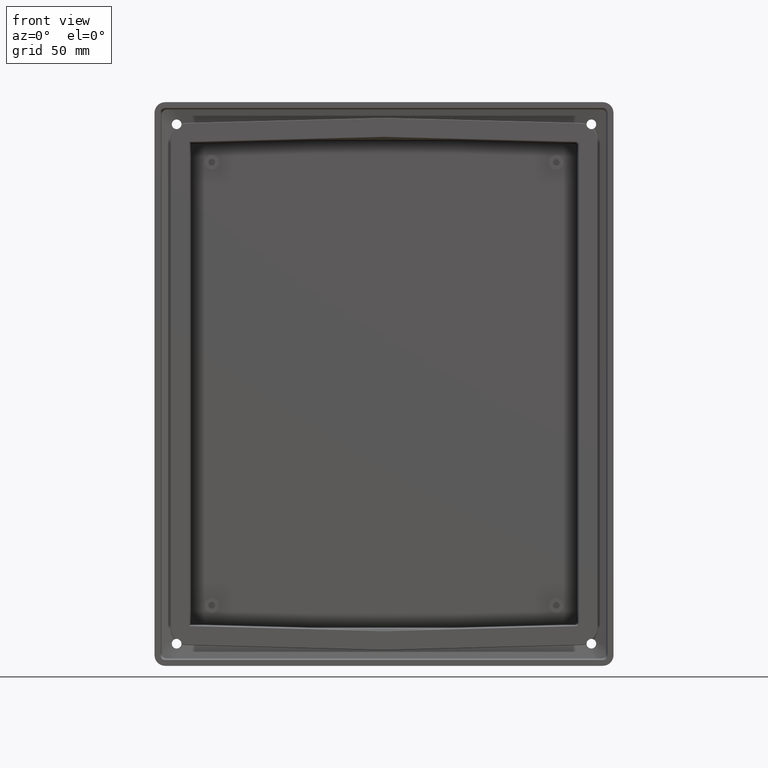
[diagram: clean part render]
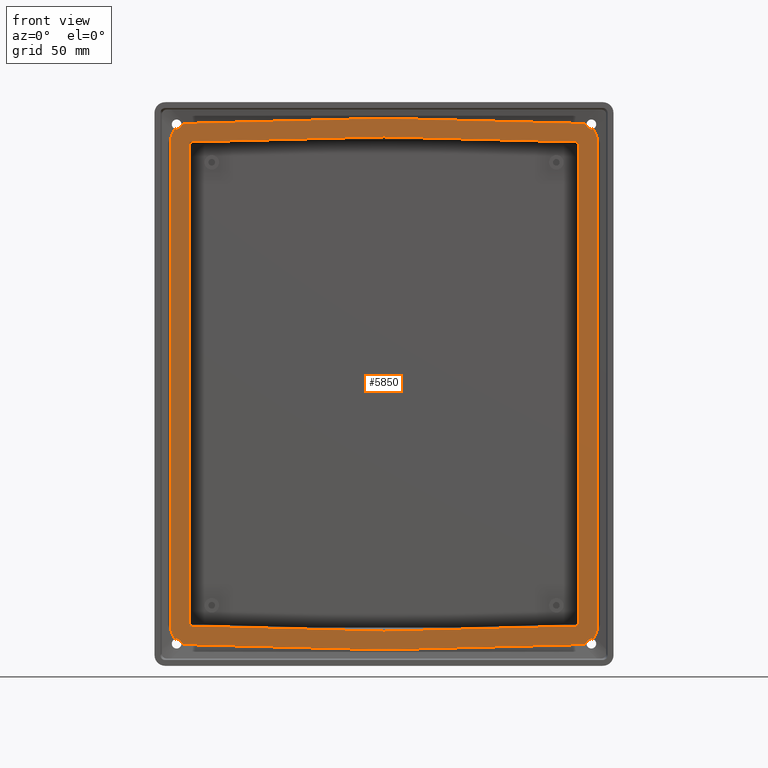
[diagram: same view with one face highlighted and labeled with its STEP entity id]
A machine part, front view. The second image highlights one B-rep face of the part: STEP entity #5850.
In plain terms, the highlighted planar face has unit normal (0, -1, 0).
Its self-contained STEP definition (entity closure, byte-faithful):
#20 = ORIENTED_EDGE ( 'NONE', *, *, #4903, .T. ) ;
#50 = LINE ( 'NONE', #1297, #4356 ) ;
#73 = CARTESIAN_POINT ( 'NONE',  ( -107.7709170404904200, 2.999999999999998700, 131.6218311841499800 ) ) ;
#88 = AXIS2_PLACEMENT_3D ( 'NONE', #2732, #6388, #5802 ) ;
#97 = DIRECTION ( 'NONE',  ( 0.0000000000000000000, 0.0000000000000000000, -1.000000000000000000 ) ) ;
#105 = LINE ( 'NONE', #2924, #5300 ) ;
#157 = ORIENTED_EDGE ( 'NONE', *, *, #1752, .T. ) ;
#169 = CARTESIAN_POINT ( 'NONE',  ( -105.0862626355093400, 2.999999999999995600, -132.4101543157424900 ) ) ;
#191 = DIRECTION ( 'NONE',  ( -1.110223024625155600E-014, 0.0000000000000000000, -1.000000000000000000 ) ) ;
#213 = LINE ( 'NONE', #2365, #6207 ) ;
#261 = CARTESIAN_POINT ( 'NONE',  ( 100.4602804365596700, 3.000000000000000000, 124.2978274590266200 ) ) ;
#276 = ORIENTED_EDGE ( 'NONE', *, *, #6682, .T. ) ;
#304 = ORIENTED_EDGE ( 'NONE', *, *, #403, .T. ) ;
#342 = VECTOR ( 'NONE', #2546, 1000.000000000000000 ) ;
#361 = CIRCLE ( 'NONE', #4826, 2.500000000000002200 ) ;
#372 = CARTESIAN_POINT ( 'NONE',  ( -110.0698050535101400, 3.000000000000000000, -125.6917712295630500 ) ) ;
#374 = VERTEX_POINT ( 'NONE', #5942 ) ;
#384 = DIRECTION ( 'NONE',  ( 0.0000000000000000000, 0.0000000000000000000, -1.000000000000000000 ) ) ;
#394 = EDGE_CURVE ( 'NONE', #3112, #4393, #2237, .T. ) ;
#398 = ORIENTED_EDGE ( 'NONE', *, *, #5612, .T. ) ;
#403 = EDGE_CURVE ( 'NONE', #5514, #5497, #4207, .T. ) ;
#409 = CARTESIAN_POINT ( 'NONE',  ( -101.5053825935026300, 3.000000000000000000, -134.4833968041017400 ) ) ;
#441 = VERTEX_POINT ( 'NONE', #1274 ) ;
#460 = ORIENTED_EDGE ( 'NONE', *, *, #1482, .F. ) ;
#498 = AXIS2_PLACEMENT_3D ( 'NONE', #3967, #2953, #2451 ) ;
#502 = CARTESIAN_POINT ( 'NONE',  ( -101.5053825935026300, 3.000000000000000000, 134.4833968041017400 ) ) ;
#571 = CARTESIAN_POINT ( 'NONE',  ( 105.0862626355093600, 2.999999999999995600, -132.4101543157424000 ) ) ;
#573 = CARTESIAN_POINT ( 'NONE',  ( -103.5449922999814400, 3.000000000000000000, 134.2508689172185300 ) ) ;
#598 = CARTESIAN_POINT ( 'NONE',  ( 110.0698050535101500, 2.999999999999999600, -127.9126488716043000 ) ) ;
#645 = EDGE_CURVE ( 'NONE', #5167, #5744, #3739, .T. ) ;
#681 = CARTESIAN_POINT ( 'NONE',  ( -106.2416402283078900, 2.999999999999995600, 131.6177971419967300 ) ) ;
#723 = CARTESIAN_POINT ( 'NONE',  ( 100.4602804365596600, 3.000000000000000000, 123.4375999160700300 ) ) ;
#765 = AXIS2_PLACEMENT_3D ( 'NONE', #928, #5644, #3083 ) ;
#878 = CIRCLE ( 'NONE', #6132, 2.500000000000002200 ) ;
#885 = ORIENTED_EDGE ( 'NONE', *, *, #2741, .F. ) ;
#892 = VERTEX_POINT ( 'NONE', #2550 ) ;
#901 = ORIENTED_EDGE ( 'NONE', *, *, #5810, .T. ) ;
#928 = CARTESIAN_POINT ( 'NONE',  ( 107.0000000000000000, 2.999999999999999100, -134.0000000000000000 ) ) ;
#950 = DIRECTION ( 'NONE',  ( 5.088522196198723700E-013, 0.0000000000000000000, -1.000000000000000000 ) ) ;
#957 = EDGE_CURVE ( 'NONE', #5205, #4393, #3784, .T. ) ;
#1031 = ORIENTED_EDGE ( 'NONE', *, *, #2206, .T. ) ;
#1039 = DIRECTION ( 'NONE',  ( 0.0000000000000000000, 0.0000000000000000000, -1.000000000000000000 ) ) ;
#1046 = EDGE_CURVE ( 'NONE', #5273, #5574, #6733, .T. ) ;
#1067 = CARTESIAN_POINT ( 'NONE',  ( 2.441132717805358200E-016, 3.000000000000000900, -137.1414087915455300 ) ) ;
#1075 = ORIENTED_EDGE ( 'NONE', *, *, #5293, .F. ) ;
#1092 = FACE_BOUND ( 'NONE', #4018, .T. ) ;
#1104 = CARTESIAN_POINT ( 'NONE',  ( -110.0698050535101400, 3.000000000000000000, 125.6917712295631600 ) ) ;
#1132 = VERTEX_POINT ( 'NONE', #4775 ) ;
#1137 = CARTESIAN_POINT ( 'NONE',  ( 101.5053825935026300, 3.000000000000000000, -134.4833968041017400 ) ) ;
#1157 = CARTESIAN_POINT ( 'NONE',  ( 102.5354722501849700, 2.999999999999999600, -134.4564229571426200 ) ) ;
#1173 = VECTOR ( 'NONE', #1423, 1000.000000000000000 ) ;
#1187 = CARTESIAN_POINT ( 'NONE',  ( 106.1605704700055400, 2.999999999999995600, 131.6579158716704100 ) ) ;
#1193 = DIRECTION ( 'NONE',  ( 0.0000000000000000000, -1.000000000000000000, 0.0000000000000000000 ) ) ;
#1201 = CARTESIAN_POINT ( 'NONE',  ( 104.5032284642048000, 3.000000000000000000, -133.8729885908950900 ) ) ;
#1246 = CIRCLE ( 'NONE', #4416, 0.2999999999999947200 ) ;
#1253 = EDGE_CURVE ( 'NONE', #4424, #374, #1428, .T. ) ;
#1274 = CARTESIAN_POINT ( 'NONE',  ( -106.1605704700056100, 2.999999999999995600, 131.6579158716704100 ) ) ;
#1295 = EDGE_CURVE ( 'NONE', #2892, #3074, #1441, .T. ) ;
#1297 = CARTESIAN_POINT ( 'NONE',  ( 238.1567941947469900, 3.000000000000000000, 39.23316500439019400 ) ) ;
#1360 = EDGE_CURVE ( 'NONE', #3586, #2762, #50, .T. ) ;
#1370 = VECTOR ( 'NONE', #3965, 1000.000000000000100 ) ;
#1379 = DIRECTION ( 'NONE',  ( 0.0000000000000000000, 0.0000000000000000000, -1.000000000000000000 ) ) ;
#1386 = EDGE_CURVE ( 'NONE', #2848, #2009, #878, .T. ) ;
#1394 = CARTESIAN_POINT ( 'NONE',  ( 106.2416402283077900, 2.999999999999995600, 131.6177971419967300 ) ) ;
#1410 = CARTESIAN_POINT ( 'NONE',  ( 101.5053825935026300, 3.000000000000000000, -134.4833968041017400 ) ) ;
#1420 = DIRECTION ( 'NONE',  ( 0.0000000000000000000, -1.000000000000000000, 0.0000000000000000000 ) ) ;
#1421 = FACE_OUTER_BOUND ( 'NONE', #4720, .T. ) ;
#1423 = DIRECTION ( 'NONE',  ( 0.8191520442889800300, 0.0000000000000000000, 0.5735764363510628100 ) ) ;
#1428 =( BOUNDED_CURVE ( )  B_SPLINE_CURVE ( 3, ( #3352, #261, #4385, #5986 ),
 .UNSPECIFIED., .F., .F. ) 
 B_SPLINE_CURVE_WITH_KNOTS ( ( 4, 4 ),
 ( 5.511470371821700600, 7.054900242537437200 ),
 .UNSPECIFIED. ) 
 CURVE ( )  GEOMETRIC_REPRESENTATION_ITEM ( )  RATIONAL_B_SPLINE_CURVE ( ( 1.000000000000000000, 0.8111438583819859900, 0.8111438583819859900, 1.000000000000000000 ) ) 
 REPRESENTATION_ITEM ( '' )  );
#1433 = VECTOR ( 'NONE', #4662, 1000.000000000000000 ) ;
#1441 = CIRCLE ( 'NONE', #6343, 2.500000000000002200 ) ;
#1447 = VERTEX_POINT ( 'NONE', #3031 ) ;
#1460 = CARTESIAN_POINT ( 'NONE',  ( 110.0698050535101500, 3.000000000000000000, -125.0000000000000000 ) ) ;
#1465 = ORIENTED_EDGE ( 'NONE', *, *, #2270, .T. ) ;
#1477 = VECTOR ( 'NONE', #6159, 1000.000000000000000 ) ;
#1482 = EDGE_CURVE ( 'NONE', #4600, #5744, #4749, .T. ) ;
#1491 = LINE ( 'NONE', #2688, #5135 ) ;
#1495 =( BOUNDED_CURVE ( )  B_SPLINE_CURVE ( 3, ( #372, #4007, #6512, #6585 ),
 .UNSPECIFIED., .F., .F. ) 
 B_SPLINE_CURVE_WITH_KNOTS ( ( 4, 4 ),
 ( 2.369877718231930600, 3.109205197224260300 ),
 .UNSPECIFIED. ) 
 CURVE ( )  GEOMETRIC_REPRESENTATION_ITEM ( )  RATIONAL_B_SPLINE_CURVE ( ( 1.000000000000000000, 0.9549659265876259100, 0.9549659265876259100, 1.000000000000000000 ) ) 
 REPRESENTATION_ITEM ( '' )  );
#1499 = CARTESIAN_POINT ( 'NONE',  ( 104.5032284642048000, 3.000000000000000900, 133.8729885908951200 ) ) ;
#1583 = DIRECTION ( 'NONE',  ( 0.0000000000000000000, -1.000000000000000000, 0.0000000000000000000 ) ) ;
#1603 = CARTESIAN_POINT ( 'NONE',  ( 0.2488056716275778800, 3.000000000000000000, -137.1348935857423000 ) ) ;
#1638 = CARTESIAN_POINT ( 'NONE',  ( -110.0698050535101400, 3.000000000000000000, -125.6917712295630500 ) ) ;
#1645 = CARTESIAN_POINT ( 'NONE',  ( 99.00043569905835700, 3.000000000000000000, -124.9361724571846300 ) ) ;
#1655 = DIRECTION ( 'NONE',  ( -0.0000000000000000000, 1.000000000000000000, -0.0000000000000000000 ) ) ;
#1662 = CARTESIAN_POINT ( 'NONE',  ( 110.0698050535101500, 3.000000000000000000, 125.6917712295630500 ) ) ;
#1673 = CIRCLE ( 'NONE', #2136, 0.3000000000000224700 ) ;
#1679 = AXIS2_PLACEMENT_3D ( 'NONE', #6248, #1655, #97 ) ;
#1701 = EDGE_CURVE ( 'NONE', #4968, #4275, #5065, .T. ) ;
#1708 = ORIENTED_EDGE ( 'NONE', *, *, #3056, .F. ) ;
#1718 =( BOUNDED_CURVE ( )  B_SPLINE_CURVE ( 3, ( #73, #2113, #5204, #1104 ),
 .UNSPECIFIED., .F., .T. ) 
 B_SPLINE_CURVE_WITH_KNOTS ( ( 4, 4 ),
 ( 3.173980109955326900, 3.913307588947643200 ),
 .UNSPECIFIED. ) 
 CURVE ( )  GEOMETRIC_REPRESENTATION_ITEM ( )  RATIONAL_B_SPLINE_CURVE ( ( 1.000000000000000000, 0.9549659265876275800, 0.9549659265876275800, 1.000000000000000000 ) ) 
 REPRESENTATION_ITEM ( '' )  );
#1723 = CARTESIAN_POINT ( 'NONE',  ( 107.7709170404904300, 2.999999999999997800, 131.6218311841499800 ) ) ;
#1744 = ORIENTED_EDGE ( 'NONE', *, *, #5248, .T. ) ;
#1751 = DIRECTION ( 'NONE',  ( -0.9996573249755572600, -0.0000000000000000000, 0.02617694830787319800 ) ) ;
#1752 = EDGE_CURVE ( 'NONE', #3012, #4851, #6698, .T. ) ;
#1756 = LINE ( 'NONE', #4475, #1370 ) ;
#1774 = EDGE_CURVE ( 'NONE', #4851, #3497, #3854, .T. ) ;
#1792 = CARTESIAN_POINT ( 'NONE',  ( 99.00043569905835700, 3.000000000000000000, -124.9361724571846300 ) ) ;
#1801 = CARTESIAN_POINT ( 'NONE',  ( 106.2416402283077900, 2.999999999999995600, -131.6177971419967300 ) ) ;
#1811 = AXIS2_PLACEMENT_3D ( 'NONE', #3215, #1193, #3193 ) ;
#1838 = CARTESIAN_POINT ( 'NONE',  ( -107.7709170404904200, 2.999999999999998700, 131.6218311841499800 ) ) ;
#1849 = DIRECTION ( 'NONE',  ( 0.0000000000000000000, -1.000000000000000000, 0.0000000000000000000 ) ) ;
#1851 = DIRECTION ( 'NONE',  ( 0.0000000000000000000, -1.000000000000000000, 0.0000000000000000000 ) ) ;
#1861 = VERTEX_POINT ( 'NONE', #1067 ) ;
#1870 = DIRECTION ( 'NONE',  ( 0.0000000000000000000, -0.0000000000000000000, -1.000000000000000000 ) ) ;
#1898 = CARTESIAN_POINT ( 'NONE',  ( -101.5053825935026300, 3.000000000000000000, -134.4833968041017400 ) ) ;
#1958 = ORIENTED_EDGE ( 'NONE', *, *, #4643, .F. ) ;
#1963 = CARTESIAN_POINT ( 'NONE',  ( 107.7709170404904300, 2.999999999999997800, 131.6218311841499800 ) ) ;
#1970 = DIRECTION ( 'NONE',  ( 0.0000000000000000000, 0.0000000000000000000, -1.000000000000000000 ) ) ;
#1974 = ORIENTED_EDGE ( 'NONE', *, *, #5939, .F. ) ;
#1975 = EDGE_CURVE ( 'NONE', #3529, #4281, #5805, .T. ) ;
#1977 = DIRECTION ( 'NONE',  ( 0.0000000000000000000, -1.000000000000000000, 0.0000000000000000000 ) ) ;
#1989 = CARTESIAN_POINT ( 'NONE',  ( -110.0698050535101400, 3.000000000000000000, 125.0000000000000000 ) ) ;
#1997 = VECTOR ( 'NONE', #4594, 1000.000000000000100 ) ;
#2002 = DIRECTION ( 'NONE',  ( -0.0000000000000000000, 1.000000000000000000, -0.0000000000000000000 ) ) ;
#2009 = VERTEX_POINT ( 'NONE', #3244 ) ;
#2030 = DIRECTION ( 'NONE',  ( -0.0000000000000000000, 1.000000000000000000, -0.0000000000000000000 ) ) ;
#2039 = CIRCLE ( 'NONE', #3553, 0.2999999999999947200 ) ;
#2041 = CARTESIAN_POINT ( 'NONE',  ( 110.0698050535101500, 3.000000000000000000, -125.6917712295631600 ) ) ;
#2065 = LINE ( 'NONE', #3250, #4655 ) ;
#2088 = ORIENTED_EDGE ( 'NONE', *, *, #4062, .F. ) ;
#2092 = CARTESIAN_POINT ( 'NONE',  ( -106.2416402283078900, 2.999999999999995600, -131.6177971419967300 ) ) ;
#2113 = CARTESIAN_POINT ( 'NONE',  ( -109.2673722305107700, 3.000000000000000000, 129.9825516780763900 ) ) ;
#2136 = AXIS2_PLACEMENT_3D ( 'NONE', #4474, #1849, #4975 ) ;
#2173 = ORIENTED_EDGE ( 'NONE', *, *, #6511, .T. ) ;
#2177 = CARTESIAN_POINT ( 'NONE',  ( -105.2583355664146400, 2.999999999999999100, 132.6558999290291800 ) ) ;
#2199 = EDGE_CURVE ( 'NONE', #5167, #6057, #4998, .T. ) ;
#2206 = EDGE_CURVE ( 'NONE', #3806, #1447, #213, .T. ) ;
#2222 = ORIENTED_EDGE ( 'NONE', *, *, #1046, .T. ) ;
#2237 =( BOUNDED_CURVE ( )  B_SPLINE_CURVE ( 3, ( #3019, #5073, #4035, #1963 ),
 .UNSPECIFIED., .F., .F. ) 
 B_SPLINE_CURVE_WITH_KNOTS ( ( 4, 4 ),
 ( 2.369877718231930600, 3.109205197224260300 ),
 .UNSPECIFIED. ) 
 CURVE ( )  GEOMETRIC_REPRESENTATION_ITEM ( )  RATIONAL_B_SPLINE_CURVE ( ( 1.000000000000000000, 0.9549659265876259100, 0.9549659265876259100, 1.000000000000000000 ) ) 
 REPRESENTATION_ITEM ( '' )  );
#2242 = CARTESIAN_POINT ( 'NONE',  ( 105.2583355664146400, 2.999999999999999100, -132.6558999290291800 ) ) ;
#2270 = EDGE_CURVE ( 'NONE', #1447, #374, #1756, .T. ) ;
#2320 = CARTESIAN_POINT ( 'NONE',  ( -105.0862626355093400, 2.999999999999995600, 132.4101543157424900 ) ) ;
#2333 = EDGE_CURVE ( 'NONE', #4275, #6312, #3013, .T. ) ;
#2335 = DIRECTION ( 'NONE',  ( 0.0000000000000000000, -1.000000000000000000, 0.0000000000000000000 ) ) ;
#2355 = ORIENTED_EDGE ( 'NONE', *, *, #957, .F. ) ;
#2365 = CARTESIAN_POINT ( 'NONE',  ( -100.5623003875013100, 3.000000000000000000, 124.8952735909513800 ) ) ;
#2391 = VECTOR ( 'NONE', #4817, 1000.000000000000000 ) ;
#2424 = VERTEX_POINT ( 'NONE', #3560 ) ;
#2448 = DIRECTION ( 'NONE',  ( -0.0000000000000000000, -0.0000000000000000000, -1.000000000000000000 ) ) ;
#2451 = DIRECTION ( 'NONE',  ( 3.330669073875466500E-014, 0.0000000000000000000, -1.000000000000000000 ) ) ;
#2485 = CIRCLE ( 'NONE', #6494, 0.3000000000000224700 ) ;
#2497 = CARTESIAN_POINT ( 'NONE',  ( -101.5053825935026300, 3.000000000000000000, 134.4833968041017400 ) ) ;
#2498 = CARTESIAN_POINT ( 'NONE',  ( -0.002742357533569910000, 3.000000000000000000, -127.5286619128748000 ) ) ;
#2519 = ORIENTED_EDGE ( 'NONE', *, *, #5828, .T. ) ;
#2523 = CARTESIAN_POINT ( 'NONE',  ( 104.5032284642048000, 3.000000000000000900, 133.8729885908951200 ) ) ;
#2546 = DIRECTION ( 'NONE',  ( 0.0000000000000000000, 0.0000000000000000000, -1.000000000000000000 ) ) ;
#2550 = CARTESIAN_POINT ( 'NONE',  ( 100.4602804365596600, 3.000000000000000000, -123.4375999160701000 ) ) ;
#2561 = VERTEX_POINT ( 'NONE', #1638 ) ;
#2562 = CIRCLE ( 'NONE', #1811, 0.3000000000000224700 ) ;
#2576 = CARTESIAN_POINT ( 'NONE',  ( 44.58730523976234400, 3.000000000000000000, -237.2127148127549100 ) ) ;
#2605 = CARTESIAN_POINT ( 'NONE',  ( 107.0000000000000000, 2.999999999999999100, 134.0000000000000000 ) ) ;
#2616 = CIRCLE ( 'NONE', #2940, 2.500000000000002200 ) ;
#2630 = CARTESIAN_POINT ( 'NONE',  ( -110.0698050535101400, 3.000000000000000000, 125.6917712295631600 ) ) ;
#2632 = AXIS2_PLACEMENT_3D ( 'NONE', #2605, #1583, #3097 ) ;
#2634 = DIRECTION ( 'NONE',  ( 0.0000000000000000000, -1.000000000000000000, 0.0000000000000000000 ) ) ;
#2641 = CARTESIAN_POINT ( 'NONE',  ( 99.86036846352061500, 3.000000000000000000, -124.9136543252596600 ) ) ;
#2688 = CARTESIAN_POINT ( 'NONE',  ( -100.4602804365596400, 3.000000000000000000, 125.0000000000000000 ) ) ;
#2689 = VERTEX_POINT ( 'NONE', #571 ) ;
#2692 = CARTESIAN_POINT ( 'NONE',  ( -100.4602804365596400, 3.000000000000000000, 124.8979450773852200 ) ) ;
#2730 = DIRECTION ( 'NONE',  ( -0.0000000000000000000, -0.0000000000000000000, 1.000000000000000000 ) ) ;
#2732 = CARTESIAN_POINT ( 'NONE',  ( 107.0000000000000000, 2.999999999999999100, -134.0000000000000000 ) ) ;
#2741 = EDGE_CURVE ( 'NONE', #1861, #6312, #2065, .T. ) ;
#2762 = VERTEX_POINT ( 'NONE', #1187 ) ;
#2764 = CARTESIAN_POINT ( 'NONE',  ( 105.0862626355093600, 2.999999999999995600, 132.4101543157424000 ) ) ;
#2766 = CARTESIAN_POINT ( 'NONE',  ( -106.3326434009109200, 2.999999999999999100, -131.9036614849571000 ) ) ;
#2805 = EDGE_CURVE ( 'NONE', #3497, #2689, #2485, .T. ) ;
#2810 = CARTESIAN_POINT ( 'NONE',  ( 107.0000000000000000, 2.999999999999999100, 134.0000000000000000 ) ) ;
#2848 = VERTEX_POINT ( 'NONE', #3367 ) ;
#2862 = AXIS2_PLACEMENT_3D ( 'NONE', #4291, #4793, #191 ) ;
#2886 = CARTESIAN_POINT ( 'NONE',  ( 0.0000000000000000000, 3.000000000000000000, -127.5285901017154900 ) ) ;
#2892 = VERTEX_POINT ( 'NONE', #1838 ) ;
#2905 = ORIENTED_EDGE ( 'NONE', *, *, #5350, .F. ) ;
#2924 = CARTESIAN_POINT ( 'NONE',  ( 100.4602804365596600, 3.000000000000000000, -125.0000000000000000 ) ) ;
#2935 = DIRECTION ( 'NONE',  ( 0.0000000000000000000, 0.0000000000000000000, -1.000000000000000000 ) ) ;
#2940 = AXIS2_PLACEMENT_3D ( 'NONE', #5091, #1977, #2935 ) ;
#2946 = PLANE ( 'NONE',  #6404 ) ;
#2953 = DIRECTION ( 'NONE',  ( -0.0000000000000000000, 1.000000000000000000, -0.0000000000000000000 ) ) ;
#2978 = DIRECTION ( 'NONE',  ( -0.0000000000000000000, 1.000000000000000000, -0.0000000000000000000 ) ) ;
#2996 = DIRECTION ( 'NONE',  ( 0.9996573249755572600, 0.0000000000000000000, 0.02617694830787319800 ) ) ;
#3012 = VERTEX_POINT ( 'NONE', #1410 ) ;
#3013 =( BOUNDED_CURVE ( )  B_SPLINE_CURVE ( 3, ( #5658, #5622, #6657, #409 ),
 .UNSPECIFIED., .F., .F. ) 
 B_SPLINE_CURVE_WITH_KNOTS ( ( 4, 4 ),
 ( 3.564010653327379400, 3.913307588947644100 ),
 .UNSPECIFIED. ) 
 CURVE ( )  GEOMETRIC_REPRESENTATION_ITEM ( )  RATIONAL_B_SPLINE_CURVE ( ( 1.000000000000000000, 0.9898584551165489100, 0.9898584551165489100, 1.000000000000000000 ) ) 
 REPRESENTATION_ITEM ( '' )  );
#3019 = CARTESIAN_POINT ( 'NONE',  ( 110.0698050535101500, 3.000000000000000000, 125.6917712295630500 ) ) ;
#3020 = CARTESIAN_POINT ( 'NONE',  ( 103.5449922999814400, 2.999999999999999100, 134.2508689172185500 ) ) ;
#3031 = CARTESIAN_POINT ( 'NONE',  ( 1.387778780781445700E-014, 3.000000000000000000, 127.5285901017154900 ) ) ;
#3056 = EDGE_CURVE ( 'NONE', #5514, #892, #5223, .T. ) ;
#3074 = VERTEX_POINT ( 'NONE', #5774 ) ;
#3083 = DIRECTION ( 'NONE',  ( 0.0000000000000000000, 0.0000000000000000000, -1.000000000000000000 ) ) ;
#3097 = DIRECTION ( 'NONE',  ( 0.0000000000000000000, 0.0000000000000000000, -1.000000000000000000 ) ) ;
#3112 = VERTEX_POINT ( 'NONE', #1662 ) ;
#3116 = CARTESIAN_POINT ( 'NONE',  ( 106.3326434009109200, 2.999999999999999100, -131.9036614849571000 ) ) ;
#3177 = ORIENTED_EDGE ( 'NONE', *, *, #5985, .F. ) ;
#3187 = LINE ( 'NONE', #1603, #3427 ) ;
#3193 = DIRECTION ( 'NONE',  ( 0.0000000000000000000, 0.0000000000000000000, -1.000000000000000000 ) ) ;
#3215 = CARTESIAN_POINT ( 'NONE',  ( 106.3326434009109200, 2.999999999999999100, 131.9036614849571000 ) ) ;
#3244 = CARTESIAN_POINT ( 'NONE',  ( -104.5032284642048000, 2.999999999999999100, 133.8729885908950900 ) ) ;
#3250 = CARTESIAN_POINT ( 'NONE',  ( -100.8138484166624700, 3.000000000000000000, -134.5015052638188700 ) ) ;
#3256 = CARTESIAN_POINT ( 'NONE',  ( -100.5623003875013100, 3.000000000000000000, -124.8952735909513800 ) ) ;
#3263 = ORIENTED_EDGE ( 'NONE', *, *, #6053, .T. ) ;
#3265 = DIRECTION ( 'NONE',  ( 0.0000000000000000000, 0.0000000000000000000, -1.000000000000000000 ) ) ;
#3269 = VECTOR ( 'NONE', #2996, 1000.000000000000100 ) ;
#3310 = VERTEX_POINT ( 'NONE', #2320 ) ;
#3320 = ORIENTED_EDGE ( 'NONE', *, *, #1386, .F. ) ;
#3352 = CARTESIAN_POINT ( 'NONE',  ( 100.4602804365596600, 3.000000000000000000, 123.4375999160700300 ) ) ;
#3353 = CIRCLE ( 'NONE', #498, 2.500000000000002200 ) ;
#3367 = CARTESIAN_POINT ( 'NONE',  ( -105.0208358709257200, 2.999999999999995600, 132.4726135557149600 ) ) ;
#3387 = VERTEX_POINT ( 'NONE', #1394 ) ;
#3399 = EDGE_CURVE ( 'NONE', #3074, #5821, #2616, .T. ) ;
#3409 = EDGE_CURVE ( 'NONE', #1132, #6236, #4149, .T. ) ;
#3427 = VECTOR ( 'NONE', #5684, 1000.000000000000100 ) ;
#3438 = CIRCLE ( 'NONE', #765, 2.500000000000002200 ) ;
#3473 = CARTESIAN_POINT ( 'NONE',  ( 101.5053825935026200, 3.000000000000000000, 134.4833968041017400 ) ) ;
#3497 = VERTEX_POINT ( 'NONE', #4093 ) ;
#3529 = VERTEX_POINT ( 'NONE', #2092 ) ;
#3547 = VERTEX_POINT ( 'NONE', #2630 ) ;
#3553 = AXIS2_PLACEMENT_3D ( 'NONE', #2177, #3767, #6319 ) ;
#3560 = CARTESIAN_POINT ( 'NONE',  ( 107.0000000000000000, 2.999999999999999100, -131.5000000000000000 ) ) ;
#3576 = CIRCLE ( 'NONE', #88, 2.500000000000002200 ) ;
#3586 = VERTEX_POINT ( 'NONE', #2764 ) ;
#3597 = CARTESIAN_POINT ( 'NONE',  ( -104.5032284642048000, 2.999999999999999100, 133.8729885908950900 ) ) ;
#3618 = VERTEX_POINT ( 'NONE', #4617 ) ;
#3640 = VERTEX_POINT ( 'NONE', #3681 ) ;
#3651 = CARTESIAN_POINT ( 'NONE',  ( 100.4602804365596700, 3.000000000000000000, -124.2978274590266800 ) ) ;
#3681 = CARTESIAN_POINT ( 'NONE',  ( -107.7709170404904200, 3.000000000000000400, -131.6218311841499800 ) ) ;
#3695 = LINE ( 'NONE', #2576, #1433 ) ;
#3714 = CARTESIAN_POINT ( 'NONE',  ( 107.0000000000000000, 2.999999999999999100, 134.0000000000000000 ) ) ;
#3733 = ORIENTED_EDGE ( 'NONE', *, *, #1701, .T. ) ;
#3739 =( BOUNDED_CURVE ( )  B_SPLINE_CURVE ( 3, ( #2523, #3020, #4584, #6094 ),
 .UNSPECIFIED., .F., .F. ) 
 B_SPLINE_CURVE_WITH_KNOTS ( ( 4, 4 ),
 ( 3.564010653327382100, 3.913307588947647200 ),
 .UNSPECIFIED. ) 
 CURVE ( )  GEOMETRIC_REPRESENTATION_ITEM ( )  RATIONAL_B_SPLINE_CURVE ( ( 1.000000000000000000, 0.9898584551165489100, 0.9898584551165489100, 1.000000000000000000 ) ) 
 REPRESENTATION_ITEM ( '' )  );
#3767 = DIRECTION ( 'NONE',  ( 0.0000000000000000000, -1.000000000000000000, 0.0000000000000000000 ) ) ;
#3784 = CIRCLE ( 'NONE', #2632, 2.500000000000002200 ) ;
#3806 = VERTEX_POINT ( 'NONE', #2692 ) ;
#3810 = AXIS2_PLACEMENT_3D ( 'NONE', #6555, #5517, #1379 ) ;
#3824 = CIRCLE ( 'NONE', #3810, 0.2999999999999947200 ) ;
#3854 = CIRCLE ( 'NONE', #2862, 2.500000000000002200 ) ;
#3875 = EDGE_CURVE ( 'NONE', #5821, #441, #3824, .T. ) ;
#3894 = AXIS2_PLACEMENT_3D ( 'NONE', #2766, #4859, #3265 ) ;
#3965 = DIRECTION ( 'NONE',  ( 0.9996573249755572600, -0.0000000000000000000, -0.02617694830787319400 ) ) ;
#3967 = CARTESIAN_POINT ( 'NONE',  ( -107.0000000000000000, 2.999999999999999100, -134.0000000000000000 ) ) ;
#4007 = CARTESIAN_POINT ( 'NONE',  ( -110.0698050535101900, 2.999999999999999100, -127.9126488716042200 ) ) ;
#4018 = EDGE_LOOP ( 'NONE', ( #1708, #304, #276, #3263, #1031, #1465, #5560, #901 ) ) ;
#4035 = CARTESIAN_POINT ( 'NONE',  ( 109.2673722305108200, 2.999999999999999100, 129.9825516780763600 ) ) ;
#4062 = EDGE_CURVE ( 'NONE', #2561, #3547, #4392, .T. ) ;
#4085 = CARTESIAN_POINT ( 'NONE',  ( 0.2488056716275778800, 3.000000000000000000, 137.1348935857423000 ) ) ;
#4093 = CARTESIAN_POINT ( 'NONE',  ( 105.0208358709257500, 2.999999999999995600, -132.4726135557149000 ) ) ;
#4119 = CARTESIAN_POINT ( 'NONE',  ( -100.8138484166624700, 3.000000000000000000, 134.5015052638188700 ) ) ;
#4149 = CIRCLE ( 'NONE', #6172, 0.3000000000000224700 ) ;
#4161 = DIRECTION ( 'NONE',  ( 0.0000000000000000000, 0.0000000000000000000, -1.000000000000000000 ) ) ;
#4181 = EDGE_CURVE ( 'NONE', #3640, #3618, #6015, .T. ) ;
#4200 = CARTESIAN_POINT ( 'NONE',  ( -102.5354722501849700, 3.000000000000000000, 134.4564229571425900 ) ) ;
#4207 = LINE ( 'NONE', #2498, #5021 ) ;
#4232 = EDGE_CURVE ( 'NONE', #3112, #5574, #5533, .T. ) ;
#4250 = ORIENTED_EDGE ( 'NONE', *, *, #6638, .T. ) ;
#4254 = EDGE_CURVE ( 'NONE', #4537, #4968, #1246, .T. ) ;
#4275 = VERTEX_POINT ( 'NONE', #5625 ) ;
#4280 = DIRECTION ( 'NONE',  ( -0.0000000000000000000, 1.000000000000000000, -0.0000000000000000000 ) ) ;
#4281 = VERTEX_POINT ( 'NONE', #5663 ) ;
#4291 = CARTESIAN_POINT ( 'NONE',  ( 107.0000000000000000, 2.999999999999999100, -134.0000000000000000 ) ) ;
#4303 = CARTESIAN_POINT ( 'NONE',  ( -105.0208358709257200, 2.999999999999995600, -132.4726135557149600 ) ) ;
#4311 = CARTESIAN_POINT ( 'NONE',  ( 105.1352294150596000, 3.000000000000000000, -132.3758674075794800 ) ) ;
#4356 = VECTOR ( 'NONE', #4901, 1000.000000000000000 ) ;
#4357 = ORIENTED_EDGE ( 'NONE', *, *, #3409, .T. ) ;
#4385 = CARTESIAN_POINT ( 'NONE',  ( 99.86036846352064300, 3.000000000000000000, 124.9136543252596400 ) ) ;
#4392 = LINE ( 'NONE', #1989, #1477 ) ;
#4393 = VERTEX_POINT ( 'NONE', #1723 ) ;
#4416 = AXIS2_PLACEMENT_3D ( 'NONE', #6679, #2030, #950 ) ;
#4424 = VERTEX_POINT ( 'NONE', #723 ) ;
#4431 = ORIENTED_EDGE ( 'NONE', *, *, #3875, .F. ) ;
#4442 = ORIENTED_EDGE ( 'NONE', *, *, #1295, .F. ) ;
#4455 = CARTESIAN_POINT ( 'NONE',  ( 111.5650427450349200, 3.000000000000000000, -141.5585924985074900 ) ) ;
#4474 = CARTESIAN_POINT ( 'NONE',  ( 105.2583355664146400, 2.999999999999999100, 132.6558999290291800 ) ) ;
#4475 = CARTESIAN_POINT ( 'NONE',  ( -0.002742357533569910000, 3.000000000000000000, 127.5286619128748000 ) ) ;
#4486 = CARTESIAN_POINT ( 'NONE',  ( -107.0000000000000000, 2.999999999999999100, 134.0000000000000000 ) ) ;
#4496 = ORIENTED_EDGE ( 'NONE', *, *, #2333, .T. ) ;
#4512 = ORIENTED_EDGE ( 'NONE', *, *, #394, .T. ) ;
#4518 = ORIENTED_EDGE ( 'NONE', *, *, #3399, .F. ) ;
#4536 = ORIENTED_EDGE ( 'NONE', *, *, #4232, .F. ) ;
#4537 = VERTEX_POINT ( 'NONE', #169 ) ;
#4538 = CARTESIAN_POINT ( 'NONE',  ( -88.43425953992654300, 3.000000000000000000, 144.0700124095614000 ) ) ;
#4575 = CARTESIAN_POINT ( 'NONE',  ( -100.4602804365596400, 2.999999999999999600, -124.8979450773852200 ) ) ;
#4584 = CARTESIAN_POINT ( 'NONE',  ( 102.5354722501849500, 2.999999999999999100, 134.4564229571426200 ) ) ;
#4594 = DIRECTION ( 'NONE',  ( 0.9996573249755572600, 0.0000000000000000000, -0.02617694830787319400 ) ) ;
#4600 = VERTEX_POINT ( 'NONE', #5903 ) ;
#4607 = CARTESIAN_POINT ( 'NONE',  ( 107.7709170404904300, 2.999999999999999100, -131.6218311841499800 ) ) ;
#4617 = CARTESIAN_POINT ( 'NONE',  ( -107.0000000000000000, 2.999999999999999100, -131.5000000000000000 ) ) ;
#4624 = CARTESIAN_POINT ( 'NONE',  ( 107.0000000000000000, 2.999999999999999100, 131.5000000000000000 ) ) ;
#4642 = ORIENTED_EDGE ( 'NONE', *, *, #1774, .T. ) ;
#4643 = EDGE_CURVE ( 'NONE', #6057, #3586, #1673, .T. ) ;
#4646 = LINE ( 'NONE', #4119, #3269 ) ;
#4655 = VECTOR ( 'NONE', #4808, 1000.000000000000100 ) ;
#4662 = DIRECTION ( 'NONE',  ( 0.8191520442889800300, 0.0000000000000000000, -0.5735764363510628100 ) ) ;
#4667 = CARTESIAN_POINT ( 'NONE',  ( 109.2673722305107700, 2.999999999999999600, -129.9825516780763900 ) ) ;
#4687 = EDGE_CURVE ( 'NONE', #2561, #3640, #1495, .T. ) ;
#4720 = EDGE_LOOP ( 'NONE', ( #6305, #3733, #4496, #885, #3177, #157, #4642, #6716, #2519, #4357, #4250, #1744, #2222, #4536, #4512, #2355, #2905, #6129, #5955, #1958, #6394, #6738, #460, #1075, #20, #3320, #5618, #1974, #4431, #4518, #4442, #2173, #2088, #5968, #5195, #398, #6411, #4838 ) ) ;
#4746 = AXIS2_PLACEMENT_3D ( 'NONE', #2810, #1851, #5482 ) ;
#4749 = LINE ( 'NONE', #4085, #1997 ) ;
#4757 = CARTESIAN_POINT ( 'NONE',  ( 103.5449922999814600, 2.999999999999999600, -134.2508689172185300 ) ) ;
#4775 = CARTESIAN_POINT ( 'NONE',  ( 106.1605704700055400, 2.999999999999995600, -131.6579158716704100 ) ) ;
#4793 = DIRECTION ( 'NONE',  ( -0.0000000000000000000, 1.000000000000000000, -0.0000000000000000000 ) ) ;
#4808 = DIRECTION ( 'NONE',  ( -0.9996573249755572600, 0.0000000000000000000, 0.02617694830787319800 ) ) ;
#4817 = DIRECTION ( 'NONE',  ( 0.8191520442889891300, 0.0000000000000000000, 0.5735764363510499300 ) ) ;
#4826 = AXIS2_PLACEMENT_3D ( 'NONE', #3714, #2634, #1039 ) ;
#4837 = DIRECTION ( 'NONE',  ( 9.251858538542278700E-014, 0.0000000000000000000, -1.000000000000000000 ) ) ;
#4838 = ORIENTED_EDGE ( 'NONE', *, *, #4910, .T. ) ;
#4849 = VERTEX_POINT ( 'NONE', #4575 ) ;
#4851 = VERTEX_POINT ( 'NONE', #5587 ) ;
#4859 = DIRECTION ( 'NONE',  ( -0.0000000000000000000, 1.000000000000000000, -0.0000000000000000000 ) ) ;
#4880 = LINE ( 'NONE', #3256, #5295 ) ;
#4901 = DIRECTION ( 'NONE',  ( 0.8191520442889891300, 0.0000000000000000000, -0.5735764363510499300 ) ) ;
#4903 = EDGE_CURVE ( 'NONE', #5171, #2009, #5613, .T. ) ;
#4907 = DIRECTION ( 'NONE',  ( 0.9996573249755572600, -0.0000000000000000000, 0.02617694830787319800 ) ) ;
#4910 = EDGE_CURVE ( 'NONE', #4281, #4537, #3695, .T. ) ;
#4968 = VERTEX_POINT ( 'NONE', #4303 ) ;
#4972 = DIRECTION ( 'NONE',  ( 0.0000000000000000000, 0.0000000000000000000, -1.000000000000000000 ) ) ;
#4975 = DIRECTION ( 'NONE',  ( 0.0000000000000000000, 0.0000000000000000000, -1.000000000000000000 ) ) ;
#4998 = CIRCLE ( 'NONE', #4746, 2.500000000000002200 ) ;
#5000 = EDGE_CURVE ( 'NONE', #2762, #3387, #2562, .T. ) ;
#5021 = VECTOR ( 'NONE', #6631, 1000.000000000000100 ) ;
#5056 = CARTESIAN_POINT ( 'NONE',  ( -107.0000000000000000, 2.999999999999999100, -134.0000000000000000 ) ) ;
#5065 = CIRCLE ( 'NONE', #1679, 2.500000000000002200 ) ;
#5073 = CARTESIAN_POINT ( 'NONE',  ( 110.0698050535101900, 2.999999999999999100, 127.9126488716042200 ) ) ;
#5085 = CARTESIAN_POINT ( 'NONE',  ( -107.0000000000000000, 2.999999999999999100, 134.0000000000000000 ) ) ;
#5091 = CARTESIAN_POINT ( 'NONE',  ( -107.0000000000000000, 2.999999999999999100, 134.0000000000000000 ) ) ;
#5135 = VECTOR ( 'NONE', #2730, 1000.000000000000000 ) ;
#5167 = VERTEX_POINT ( 'NONE', #1499 ) ;
#5171 = VERTEX_POINT ( 'NONE', #2497 ) ;
#5181 = CARTESIAN_POINT ( 'NONE',  ( 107.7709170404904300, 2.999999999999999100, -131.6218311841499800 ) ) ;
#5195 = ORIENTED_EDGE ( 'NONE', *, *, #4181, .T. ) ;
#5204 = CARTESIAN_POINT ( 'NONE',  ( -110.0698050535101400, 3.000000000000000000, 127.9126488716043000 ) ) ;
#5205 = VERTEX_POINT ( 'NONE', #4624 ) ;
#5223 =( BOUNDED_CURVE ( )  B_SPLINE_CURVE ( 3, ( #1645, #2641, #3651, #6253 ),
 .UNSPECIFIED., .F., .F. ) 
 B_SPLINE_CURVE_WITH_KNOTS ( ( 4, 4 ),
 ( 2.369877718231923500, 3.913307588947641400 ),
 .UNSPECIFIED. ) 
 CURVE ( )  GEOMETRIC_REPRESENTATION_ITEM ( )  RATIONAL_B_SPLINE_CURVE ( ( 1.000000000000000000, 0.8111438583819904300, 0.8111438583819904300, 1.000000000000000000 ) ) 
 REPRESENTATION_ITEM ( '' )  );
#5248 = EDGE_CURVE ( 'NONE', #2424, #5273, #3438, .T. ) ;
#5273 = VERTEX_POINT ( 'NONE', #4607 ) ;
#5284 = CARTESIAN_POINT ( 'NONE',  ( 105.0208358709257500, 2.999999999999995600, 132.4726135557149000 ) ) ;
#5293 = EDGE_CURVE ( 'NONE', #5171, #4600, #4646, .T. ) ;
#5295 = VECTOR ( 'NONE', #1751, 1000.000000000000100 ) ;
#5300 = VECTOR ( 'NONE', #2448, 1000.000000000000000 ) ;
#5350 = EDGE_CURVE ( 'NONE', #3387, #5205, #361, .T. ) ;
#5462 = AXIS2_PLACEMENT_3D ( 'NONE', #5056, #2978, #384 ) ;
#5482 = DIRECTION ( 'NONE',  ( 0.0000000000000000000, 0.0000000000000000000, -1.000000000000000000 ) ) ;
#5497 = VERTEX_POINT ( 'NONE', #2886 ) ;
#5514 = VERTEX_POINT ( 'NONE', #1792 ) ;
#5517 = DIRECTION ( 'NONE',  ( 0.0000000000000000000, -1.000000000000000000, 0.0000000000000000000 ) ) ;
#5533 = LINE ( 'NONE', #1460, #342 ) ;
#5560 = ORIENTED_EDGE ( 'NONE', *, *, #1253, .F. ) ;
#5574 = VERTEX_POINT ( 'NONE', #6450 ) ;
#5587 = CARTESIAN_POINT ( 'NONE',  ( 104.5032284642048000, 3.000000000000000000, -133.8729885908950900 ) ) ;
#5612 = EDGE_CURVE ( 'NONE', #3618, #3529, #3353, .T. ) ;
#5613 =( BOUNDED_CURVE ( )  B_SPLINE_CURVE ( 3, ( #502, #4200, #573, #3597 ),
 .UNSPECIFIED., .F., .F. ) 
 B_SPLINE_CURVE_WITH_KNOTS ( ( 4, 4 ),
 ( 2.369877718231943500, 2.719174653852208100 ),
 .UNSPECIFIED. ) 
 CURVE ( )  GEOMETRIC_REPRESENTATION_ITEM ( )  RATIONAL_B_SPLINE_CURVE ( ( 1.000000000000000000, 0.9898584551165489100, 0.9898584551165489100, 1.000000000000000000 ) ) 
 REPRESENTATION_ITEM ( '' )  );
#5618 = ORIENTED_EDGE ( 'NONE', *, *, #6645, .F. ) ;
#5622 = CARTESIAN_POINT ( 'NONE',  ( -103.5449922999814400, 2.999999999999999100, -134.2508689172185300 ) ) ;
#5625 = CARTESIAN_POINT ( 'NONE',  ( -104.5032284642048000, 2.999999999999999100, -133.8729885908950900 ) ) ;
#5644 = DIRECTION ( 'NONE',  ( -0.0000000000000000000, 1.000000000000000000, -0.0000000000000000000 ) ) ;
#5658 = CARTESIAN_POINT ( 'NONE',  ( -104.5032284642048000, 2.999999999999999100, -133.8729885908950900 ) ) ;
#5663 = CARTESIAN_POINT ( 'NONE',  ( -106.1605704700056100, 2.999999999999995600, -131.6579158716704100 ) ) ;
#5684 = DIRECTION ( 'NONE',  ( -0.9996573249755572600, 0.0000000000000000000, -0.02617694830787319400 ) ) ;
#5744 = VERTEX_POINT ( 'NONE', #3473 ) ;
#5774 = CARTESIAN_POINT ( 'NONE',  ( -107.0000000000000000, 2.999999999999999100, 131.5000000000000000 ) ) ;
#5802 = DIRECTION ( 'NONE',  ( 0.0000000000000000000, 0.0000000000000000000, -1.000000000000000000 ) ) ;
#5805 = CIRCLE ( 'NONE', #3894, 0.2999999999999947200 ) ;
#5810 = EDGE_CURVE ( 'NONE', #4424, #892, #105, .T. ) ;
#5821 = VERTEX_POINT ( 'NONE', #681 ) ;
#5828 = EDGE_CURVE ( 'NONE', #2689, #1132, #6269, .T. ) ;
#5850 = ADVANCED_FACE ( 'NONE', ( #1092, #1421 ), #2946, .T. ) ;
#5871 = DIRECTION ( 'NONE',  ( 0.0000000000000000000, -1.000000000000000000, 0.0000000000000000000 ) ) ;
#5903 = CARTESIAN_POINT ( 'NONE',  ( 4.163336342344337000E-014, 3.000000000000000000, 137.1414087915455300 ) ) ;
#5939 = EDGE_CURVE ( 'NONE', #441, #3310, #6595, .T. ) ;
#5942 = CARTESIAN_POINT ( 'NONE',  ( 99.00043569905835700, 3.000000000000000000, 124.9361724571846300 ) ) ;
#5955 = ORIENTED_EDGE ( 'NONE', *, *, #1360, .F. ) ;
#5968 = ORIENTED_EDGE ( 'NONE', *, *, #4687, .T. ) ;
#5985 = EDGE_CURVE ( 'NONE', #3012, #1861, #3187, .T. ) ;
#5986 = CARTESIAN_POINT ( 'NONE',  ( 99.00043569905835700, 3.000000000000000000, 124.9361724571846300 ) ) ;
#6015 = CIRCLE ( 'NONE', #5462, 2.500000000000002200 ) ;
#6053 = EDGE_CURVE ( 'NONE', #4849, #3806, #1491, .T. ) ;
#6057 = VERTEX_POINT ( 'NONE', #5284 ) ;
#6094 = CARTESIAN_POINT ( 'NONE',  ( 101.5053825935026200, 3.000000000000000000, 134.4833968041017400 ) ) ;
#6129 = ORIENTED_EDGE ( 'NONE', *, *, #5000, .F. ) ;
#6132 = AXIS2_PLACEMENT_3D ( 'NONE', #5085, #2335, #1970 ) ;
#6159 = DIRECTION ( 'NONE',  ( 0.0000000000000000000, 0.0000000000000000000, 1.000000000000000000 ) ) ;
#6172 = AXIS2_PLACEMENT_3D ( 'NONE', #3116, #2002, #4161 ) ;
#6207 = VECTOR ( 'NONE', #4907, 1000.000000000000100 ) ;
#6236 = VERTEX_POINT ( 'NONE', #1801 ) ;
#6248 = CARTESIAN_POINT ( 'NONE',  ( -107.0000000000000000, 2.999999999999999100, -134.0000000000000000 ) ) ;
#6253 = CARTESIAN_POINT ( 'NONE',  ( 100.4602804365596600, 3.000000000000000000, -123.4375999160701000 ) ) ;
#6269 = LINE ( 'NONE', #4311, #2391 ) ;
#6305 = ORIENTED_EDGE ( 'NONE', *, *, #4254, .T. ) ;
#6312 = VERTEX_POINT ( 'NONE', #1898 ) ;
#6319 = DIRECTION ( 'NONE',  ( 0.0000000000000000000, 0.0000000000000000000, -1.000000000000000000 ) ) ;
#6343 = AXIS2_PLACEMENT_3D ( 'NONE', #4486, #1420, #4972 ) ;
#6388 = DIRECTION ( 'NONE',  ( -0.0000000000000000000, 1.000000000000000000, -0.0000000000000000000 ) ) ;
#6394 = ORIENTED_EDGE ( 'NONE', *, *, #2199, .F. ) ;
#6404 = AXIS2_PLACEMENT_3D ( 'NONE', #4455, #5871, #1870 ) ;
#6411 = ORIENTED_EDGE ( 'NONE', *, *, #1975, .T. ) ;
#6450 = CARTESIAN_POINT ( 'NONE',  ( 110.0698050535101500, 3.000000000000000000, -125.6917712295631600 ) ) ;
#6494 = AXIS2_PLACEMENT_3D ( 'NONE', #2242, #4280, #4837 ) ;
#6511 = EDGE_CURVE ( 'NONE', #2892, #3547, #1718, .T. ) ;
#6512 = CARTESIAN_POINT ( 'NONE',  ( -109.2673722305108000, 2.999999999999999100, -129.9825516780763600 ) ) ;
#6555 = CARTESIAN_POINT ( 'NONE',  ( -106.3326434009109200, 2.999999999999999100, 131.9036614849571000 ) ) ;
#6585 = CARTESIAN_POINT ( 'NONE',  ( -107.7709170404904200, 3.000000000000000400, -131.6218311841499800 ) ) ;
#6595 = LINE ( 'NONE', #4538, #1173 ) ;
#6631 = DIRECTION ( 'NONE',  ( -0.9996573249755572600, -0.0000000000000000000, -0.02617694830787319400 ) ) ;
#6638 = EDGE_CURVE ( 'NONE', #6236, #2424, #3576, .T. ) ;
#6645 = EDGE_CURVE ( 'NONE', #3310, #2848, #2039, .T. ) ;
#6657 = CARTESIAN_POINT ( 'NONE',  ( -102.5354722501849700, 2.999999999999999100, -134.4564229571425900 ) ) ;
#6679 = CARTESIAN_POINT ( 'NONE',  ( -105.2583355664146400, 2.999999999999999100, -132.6558999290291800 ) ) ;
#6682 = EDGE_CURVE ( 'NONE', #5497, #4849, #4880, .T. ) ;
#6698 =( BOUNDED_CURVE ( )  B_SPLINE_CURVE ( 3, ( #1137, #1157, #4757, #1201 ),
 .UNSPECIFIED., .F., .F. ) 
 B_SPLINE_CURVE_WITH_KNOTS ( ( 4, 4 ),
 ( 2.369877718231940400, 2.719174653852205500 ),
 .UNSPECIFIED. ) 
 CURVE ( )  GEOMETRIC_REPRESENTATION_ITEM ( )  RATIONAL_B_SPLINE_CURVE ( ( 1.000000000000000000, 0.9898584551165489100, 0.9898584551165489100, 1.000000000000000000 ) ) 
 REPRESENTATION_ITEM ( '' )  );
#6716 = ORIENTED_EDGE ( 'NONE', *, *, #2805, .T. ) ;
#6733 =( BOUNDED_CURVE ( )  B_SPLINE_CURVE ( 3, ( #5181, #4667, #598, #2041 ),
 .UNSPECIFIED., .F., .F. ) 
 B_SPLINE_CURVE_WITH_KNOTS ( ( 4, 4 ),
 ( 3.173980109955326000, 3.913307588947643200 ),
 .UNSPECIFIED. ) 
 CURVE ( )  GEOMETRIC_REPRESENTATION_ITEM ( )  RATIONAL_B_SPLINE_CURVE ( ( 1.000000000000000000, 0.9549659265876273600, 0.9549659265876273600, 1.000000000000000000 ) ) 
 REPRESENTATION_ITEM ( '' )  );
#6738 = ORIENTED_EDGE ( 'NONE', *, *, #645, .T. ) ;